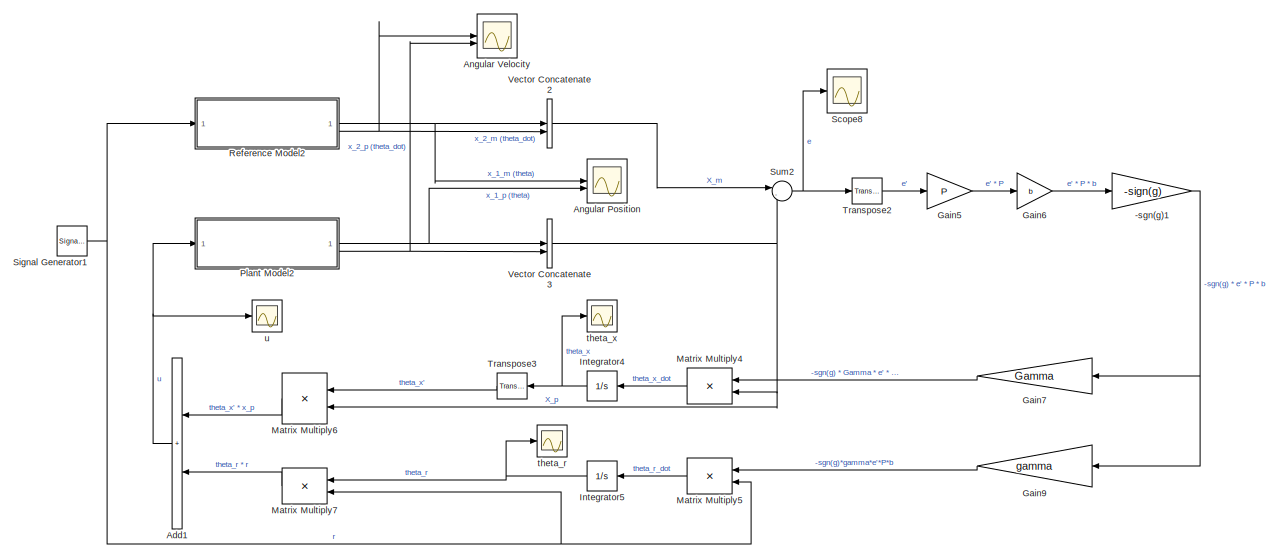
[diagram: root canvas - part 1/4, full width, top band]
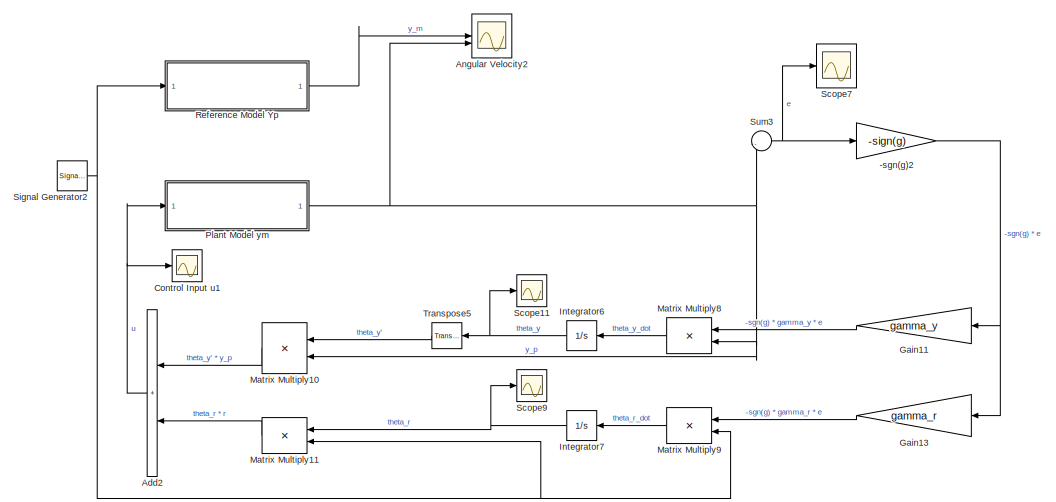
[diagram: root canvas - part 2/4, central region]
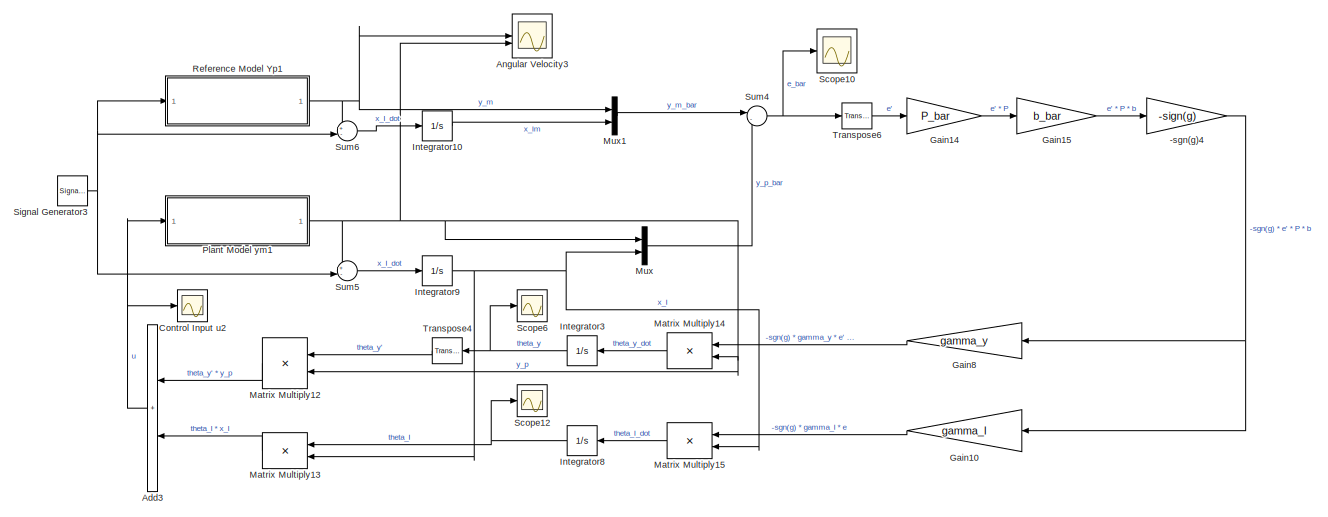
[diagram: root canvas - part 3/4, full width, middle band]
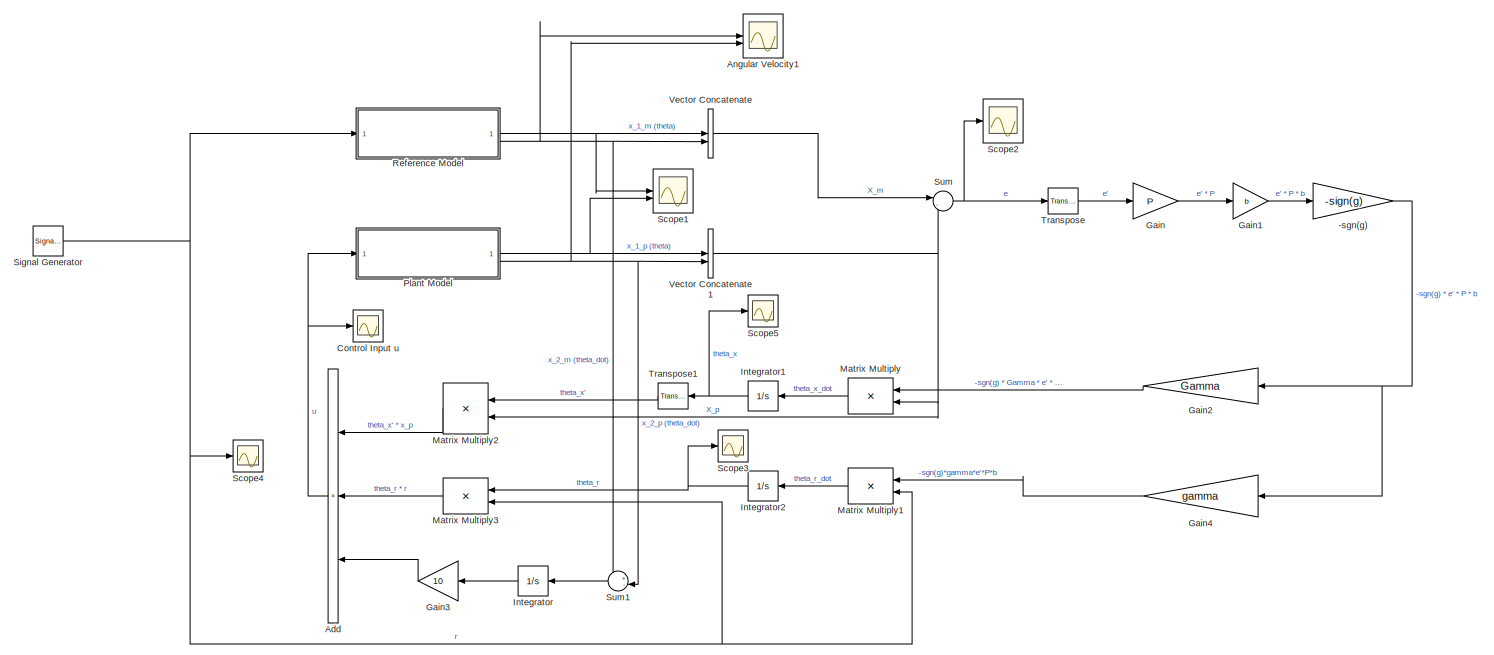
[diagram: root canvas - part 4/4, full width, bottom band]
MODEL slx_65a392cab419
KIND model
CONFIG AbsTol = auto
CONFIG EnableMultiTasking = off
CONFIG FixedStep = auto
CONFIG MaxStep = auto
CONFIG MinStep = auto
CONFIG RelTol = 1e-3
CONFIG SampleTimeConstraint = Unconstrained
CONFIG SolverName = VariableStepAuto
CONFIG StartTime = 0.0
CONFIG StopTime = 45
BLOCK [Gain] -sgn(g)
  Commented = on
  Gain = -sign(g)
BLOCK [Gain] -sgn(g)1
  Commented = on
  Gain = -sign(g)
BLOCK [Gain] -sgn(g)2
  Commented = on
  Gain = -sign(g)
BLOCK [Gain] -sgn(g)4
  Gain = -sign(g)
BLOCK [Sum] Add
  Commented = on
  IconShape = rectangular
  Inputs = +++
  NameLocation = top
BLOCK [Sum] Add1
  Commented = on
  IconShape = rectangular
  NameLocation = top
BLOCK [Sum] Add2
  Commented = on
  IconShape = rectangular
  NameLocation = top
BLOCK [Sum] Add3
  IconShape = rectangular
  NameLocation = top
BLOCK [Scope] Angular Position
  Floating = off
  NumInputPorts = 2
  ScopeSpecificationString = Simulink.scopes.TimeScopeBlockCfg('CurrentConfiguration', extmgr.ConfigurationSet(extmgr.Configuration('Core','General UI',true),extmgr.Configuration('Core','Source UI',true),extmgr.Configuration('Sources','WiredSimulink',true,'DataLoggingVariableName','ScopeData4','DataLoggingSaveFormat','Array','DataLoggingDecimation','1'),extmgr.Configuration('Visuals','Time Domain',true,'SerializedDisplays',{s...<+1920ch>
BLOCK [Scope] Angular Velocity
  Commented = on
  Floating = off
  NumInputPorts = 2
  ScopeSpecificationString = Simulink.scopes.TimeScopeBlockCfg('CurrentConfiguration', extmgr.ConfigurationSet(extmgr.Configuration('Core','General UI',true),extmgr.Configuration('Core','Source UI',true),extmgr.Configuration('Sources','WiredSimulink',true,'DataLoggingVariableName','ScopeData6','DataLoggingSaveFormat','Array','DataLoggingDecimation','1'),extmgr.Configuration('Visuals','Time Domain',true,'SerializedDisplays',{s...<+1735ch>
BLOCK [Scope] Angular Velocity1
  Commented = on
  Floating = off
  NumInputPorts = 2
  ScopeSpecificationString = Simulink.scopes.TimeScopeBlockCfg('CurrentConfiguration', extmgr.ConfigurationSet(extmgr.Configuration('Core','General UI',true),extmgr.Configuration('Core','Source UI',true),extmgr.Configuration('Sources','WiredSimulink',true,'DataLoggingVariableName','ScopeData3','DataLoggingSaveFormat','Array','DataLoggingDecimation','1'),extmgr.Configuration('Visuals','Time Domain',true,'SerializedDisplays',{s...<+1736ch>
BLOCK [Scope] Angular Velocity2
  Commented = on
  Floating = off
  NumInputPorts = 2
  ScopeSpecificationString = Simulink.scopes.TimeScopeBlockCfg('CurrentConfiguration', extmgr.ConfigurationSet(extmgr.Configuration('Core','General UI',true),extmgr.Configuration('Core','Source UI',true),extmgr.Configuration('Sources','WiredSimulink',true,'DataLoggingVariableName','ScopeData1','DataLoggingSaveFormat','Array','DataLoggingDecimation','1'),extmgr.Configuration('Visuals','Time Domain',true,'SerializedDisplays',{s...<+1706ch>
BLOCK [Scope] Angular Velocity3
  Floating = off
  NumInputPorts = 2
  ScopeSpecificationString = Simulink.scopes.TimeScopeBlockCfg('CurrentConfiguration', extmgr.ConfigurationSet(extmgr.Configuration('Core','General UI',true),extmgr.Configuration('Core','Source UI',true),extmgr.Configuration('Sources','WiredSimulink',true,'DataLoggingVariableName','ScopeData1','DataLoggingSaveFormat','Array','DataLoggingDecimation','1'),extmgr.Configuration('Visuals','Time Domain',true,'SerializedDisplays',{s...<+1732ch>
BLOCK [Scope] Control Input u
  Commented = on
  Floating = off
  NumInputPorts = 1
  ScopeSpecificationString = Simulink.scopes.TimeScopeBlockCfg('CurrentConfiguration', extmgr.ConfigurationSet(extmgr.Configuration('Core','General UI',true),extmgr.Configuration('Core','Source UI',true),extmgr.Configuration('Sources','WiredSimulink',true,'DataLoggingVariableName','ScopeData1'),extmgr.Configuration('Visuals','Time Domain',true,'SerializedDisplays',{struct('MinYLimReal','-31.2827','MaxYLimReal','29.62293','YLa...<+1386ch>
BLOCK [Scope] Control Input u1
  Commented = on
  Floating = off
  NumInputPorts = 1
  ScopeSpecificationString = Simulink.scopes.TimeScopeBlockCfg('CurrentConfiguration', extmgr.ConfigurationSet(extmgr.Configuration('Core','General UI',true),extmgr.Configuration('Core','Source UI',true),extmgr.Configuration('Sources','WiredSimulink',true,'DataLoggingVariableName','ScopeData2'),extmgr.Configuration('Visuals','Time Domain',true,'SerializedDisplays',{struct('MinYLimReal','-5.10662','MaxYLimReal','7.58229','YLab...<+1408ch>
BLOCK [Scope] Control Input u2
  Floating = off
  NumInputPorts = 1
  ScopeSpecificationString = Simulink.scopes.TimeScopeBlockCfg('CurrentConfiguration', extmgr.ConfigurationSet(extmgr.Configuration('Core','General UI',true),extmgr.Configuration('Core','Source UI',true),extmgr.Configuration('Sources','WiredSimulink',true,'DataLoggingVariableName','ScopeData2'),extmgr.Configuration('Visuals','Time Domain',true,'SerializedDisplays',{struct('MinYLimReal','-5.10662','MaxYLimReal','7.58229','YLab...<+1434ch>
BLOCK [Gain] Gain
  Commented = on
  Gain = P
  Multiplication = Matrix(u*K)
BLOCK [Gain] Gain1
  Commented = on
  Gain = b
  Multiplication = Matrix(u*K)
BLOCK [Gain] Gain10
  Gain = gamma_I
  NameLocation = top
BLOCK [Gain] Gain11
  Commented = on
  Gain = gamma_y
  NameLocation = top
BLOCK [Gain] Gain13
  Commented = on
  Gain = gamma_r
  NameLocation = top
BLOCK [Gain] Gain14
  Gain = P_bar
  Multiplication = Matrix(u*K)
BLOCK [Gain] Gain15
  Gain = b_bar
  Multiplication = Matrix(u*K)
BLOCK [Gain] Gain2
  Commented = on
  Gain = Gamma
  NameLocation = top
BLOCK [Gain] Gain3
  Commented = on
  Gain = 10
  NameLocation = top
BLOCK [Gain] Gain4
  Commented = on
  Gain = gamma
  NameLocation = top
BLOCK [Gain] Gain5
  Commented = on
  Gain = P
  Multiplication = Matrix(u*K)
BLOCK [Gain] Gain6
  Commented = on
  Gain = b
  Multiplication = Matrix(u*K)
BLOCK [Gain] Gain7
  Commented = on
  Gain = Gamma
  NameLocation = top
BLOCK [Gain] Gain8
  Gain = gamma_y
  NameLocation = top
BLOCK [Gain] Gain9
  Commented = on
  Gain = gamma
  NameLocation = top
BLOCK [Integrator] Integrator
  Commented = on
  NameLocation = top
BLOCK [Integrator] Integrator1
  Commented = on
  NameLocation = top
BLOCK [Integrator] Integrator10
BLOCK [Integrator] Integrator2
  Commented = on
  NameLocation = top
BLOCK [Integrator] Integrator3
  NameLocation = top
BLOCK [Integrator] Integrator4
  Commented = on
  NameLocation = top
BLOCK [Integrator] Integrator5
  Commented = on
  NameLocation = top
BLOCK [Integrator] Integrator6
  Commented = on
  NameLocation = top
BLOCK [Integrator] Integrator7
  Commented = on
  NameLocation = top
BLOCK [Integrator] Integrator8
  NameLocation = top
BLOCK [Integrator] Integrator9
BLOCK [Product] Matrix Multiply
  Commented = on
  Multiplication = Matrix(*)
  NameLocation = top
BLOCK [Product] Matrix Multiply1
  Commented = on
  Multiplication = Matrix(*)
  NameLocation = top
BLOCK [Product] Matrix Multiply10
  Commented = on
  Multiplication = Matrix(*)
  NameLocation = top
BLOCK [Product] Matrix Multiply11
  Commented = on
  Multiplication = Matrix(*)
  NameLocation = top
BLOCK [Product] Matrix Multiply12
  Multiplication = Matrix(*)
  NameLocation = top
BLOCK [Product] Matrix Multiply13
  Multiplication = Matrix(*)
  NameLocation = top
BLOCK [Product] Matrix Multiply14
  Multiplication = Matrix(*)
  NameLocation = top
BLOCK [Product] Matrix Multiply15
  Multiplication = Matrix(*)
  NameLocation = top
BLOCK [Product] Matrix Multiply2
  Commented = on
  Multiplication = Matrix(*)
  NameLocation = top
BLOCK [Product] Matrix Multiply3
  Commented = on
  Multiplication = Matrix(*)
  NameLocation = top
BLOCK [Product] Matrix Multiply4
  Commented = on
  Multiplication = Matrix(*)
  NameLocation = top
BLOCK [Product] Matrix Multiply5
  Commented = on
  Multiplication = Matrix(*)
  NameLocation = top
BLOCK [Product] Matrix Multiply6
  Commented = on
  Multiplication = Matrix(*)
  NameLocation = top
BLOCK [Product] Matrix Multiply7
  Commented = on
  Multiplication = Matrix(*)
  NameLocation = top
BLOCK [Product] Matrix Multiply8
  Commented = on
  Multiplication = Matrix(*)
  NameLocation = top
BLOCK [Product] Matrix Multiply9
  Commented = on
  Multiplication = Matrix(*)
  NameLocation = top
BLOCK [Mux] Mux
  DisplayOption = bar
  Inputs = 2
BLOCK [Mux] Mux1
  DisplayOption = bar
  Inputs = 2
BLOCK [ModelReference] Plant Model
  Commented = on
  ModelNameDialog = plant_model.slx
  ModelReferenceVersion = 1.20
BLOCK [ModelReference] Plant Model ym
  Commented = on
  ModelNameDialog = plant_model_ym.slx
  ModelReferenceVersion = 1.2
BLOCK [ModelReference] Plant Model ym1
  ModelNameDialog = plant_model_ym.slx
  ModelReferenceVersion = 1.2
BLOCK [ModelReference] Plant Model2
  Commented = on
  ModelNameDialog = plant_model.slx
  ModelReferenceVersion = 1.20
BLOCK [ModelReference] Reference Model
  Commented = on
  ModelNameDialog = reference_model.slx
  ModelReferenceVersion = 1.10
BLOCK [ModelReference] Reference Model Yp
  Commented = on
  ModelNameDialog = reference_model_yp.slx
  ModelReferenceVersion = 1.3
BLOCK [ModelReference] Reference Model Yp1
  ModelNameDialog = reference_model_yp.slx
  ModelReferenceVersion = 1.3
BLOCK [ModelReference] Reference Model2
  Commented = on
  ModelNameDialog = reference_model.slx
  ModelReferenceVersion = 1.10
BLOCK [Scope] Scope1
  Commented = on
  Floating = off
  NumInputPorts = 2
  ScopeSpecificationString = Simulink.scopes.TimeScopeBlockCfg('CurrentConfiguration', extmgr.ConfigurationSet(extmgr.Configuration('Core','General UI',true),extmgr.Configuration('Core','Source UI',true),extmgr.Configuration('Sources','WiredSimulink',true,'DataLoggingVariableName','ScopeData1','DataLoggingSaveFormat','Array','DataLoggingLimitDataPoints',true,'DataLoggingDecimation','1'),extmgr.Configuration('Visuals','Time Do...<+1754ch>
BLOCK [Scope] Scope10
  Floating = off
  NumInputPorts = 1
  ScopeSpecificationString = Simulink.scopes.TimeScopeBlockCfg('CurrentConfiguration', extmgr.ConfigurationSet(extmgr.Configuration('Core','General UI',true),extmgr.Configuration('Core','Source UI',true),extmgr.Configuration('Sources','WiredSimulink',true,'DataLoggingSaveFormat','Array','DataLoggingLimitDataPoints',true,'DataLoggingDecimation','1','DataLoggingVariableName','ScopeData3'),extmgr.Configuration('Visuals','Time Do...<+1631ch>
BLOCK [Scope] Scope11
  Commented = on
  Floating = off
  NumInputPorts = 1
  ScopeSpecificationString = Simulink.scopes.TimeScopeBlockCfg('CurrentConfiguration', extmgr.ConfigurationSet(extmgr.Configuration('Core','General UI',true),extmgr.Configuration('Core','Source UI',true),extmgr.Configuration('Sources','WiredSimulink',true,'DataLoggingVariableName','ScopeData4'),extmgr.Configuration('Visuals','Time Domain',true,'SerializedDisplays',{struct('MinYLimReal','-1.7155','MaxYLimReal','1.63688','YLabe...<+1389ch>
BLOCK [Scope] Scope12
  Floating = off
  NumInputPorts = 1
  ScopeSpecificationString = Simulink.scopes.TimeScopeBlockCfg('CurrentConfiguration', extmgr.ConfigurationSet(extmgr.Configuration('Core','General UI',true),extmgr.Configuration('Core','Source UI',true),extmgr.Configuration('Sources','WiredSimulink',true,'DataLoggingVariableName','ScopeData4'),extmgr.Configuration('Visuals','Time Domain',true,'SerializedDisplays',{struct('MinYLimReal','-0.29294','MaxYLimReal','2.63647','YLab...<+1419ch>
BLOCK [Scope] Scope2
  Commented = on
  Floating = off
  NumInputPorts = 1
  ScopeSpecificationString = Simulink.scopes.TimeScopeBlockCfg('CurrentConfiguration', extmgr.ConfigurationSet(extmgr.Configuration('Core','General UI',true),extmgr.Configuration('Core','Source UI',true),extmgr.Configuration('Sources','WiredSimulink',true,'DataLoggingSaveFormat','Array','DataLoggingLimitDataPoints',true,'DataLoggingDecimation','1'),extmgr.Configuration('Visuals','Time Domain',true,'SerializedDisplays',{struct...<+1603ch>
BLOCK [Scope] Scope3
  Commented = on
  Floating = off
  NumInputPorts = 1
  ScopeSpecificationString = Simulink.scopes.TimeScopeBlockCfg('CurrentConfiguration', extmgr.ConfigurationSet(extmgr.Configuration('Core','General UI',true),extmgr.Configuration('Core','Source UI',true),extmgr.Configuration('Sources','WiredSimulink',true,'DataLoggingVariableName','ScopeData2'),extmgr.Configuration('Visuals','Time Domain',true,'SerializedDisplays',{struct('MinYLimReal','-48.05863','MaxYLimReal','14.07149','YL...<+1415ch>
BLOCK [Scope] Scope4
  Commented = on
  Floating = off
  NumInputPorts = 1
  ScopeSpecificationString = Simulink.scopes.TimeScopeBlockCfg('CurrentConfiguration', extmgr.ConfigurationSet(extmgr.Configuration('Core','General UI',true),extmgr.Configuration('Core','Source UI',true),extmgr.Configuration('Sources','WiredSimulink',true,'DataLoggingVariableName','ScopeData3'),extmgr.Configuration('Visuals','Time Domain',true,'SerializedDisplays',{struct('MinYLimReal','-1.1','MaxYLimReal','-0.9','YLabelReal'...<+1366ch>
BLOCK [Scope] Scope5
  Commented = on
  Floating = off
  NumInputPorts = 1
  ScopeSpecificationString = Simulink.scopes.TimeScopeBlockCfg('CurrentConfiguration', extmgr.ConfigurationSet(extmgr.Configuration('Core','General UI',true),extmgr.Configuration('Core','Source UI',true),extmgr.Configuration('Sources','WiredSimulink',true,'DataLoggingVariableName','ScopeData3'),extmgr.Configuration('Visuals','Time Domain',true,'SerializedDisplays',{struct('MinYLimReal','-3.48628','MaxYLimReal','3.99642','YLab...<+1408ch>
BLOCK [Scope] Scope6
  Floating = off
  NumInputPorts = 1
  ScopeSpecificationString = Simulink.scopes.TimeScopeBlockCfg('CurrentConfiguration', extmgr.ConfigurationSet(extmgr.Configuration('Core','General UI',true),extmgr.Configuration('Core','Source UI',true),extmgr.Configuration('Sources','WiredSimulink',true,'DataLoggingVariableName','ScopeData5'),extmgr.Configuration('Visuals','Time Domain',true,'SerializedDisplays',{struct('MinYLimReal','-1.7155','MaxYLimReal','1.63688','YLabe...<+1415ch>
BLOCK [Scope] Scope7
  Commented = on
  Floating = off
  NumInputPorts = 1
  ScopeSpecificationString = Simulink.scopes.TimeScopeBlockCfg('CurrentConfiguration', extmgr.ConfigurationSet(extmgr.Configuration('Core','General UI',true),extmgr.Configuration('Core','Source UI',true),extmgr.Configuration('Sources','WiredSimulink',true,'DataLoggingSaveFormat','Array','DataLoggingLimitDataPoints',true,'DataLoggingDecimation','1','DataLoggingVariableName','ScopeData6'),extmgr.Configuration('Visuals','Time Do...<+1631ch>
BLOCK [Scope] Scope8
  Commented = on
  Floating = off
  NumInputPorts = 1
  ScopeSpecificationString = Simulink.scopes.TimeScopeBlockCfg('CurrentConfiguration', extmgr.ConfigurationSet(extmgr.Configuration('Core','General UI',true),extmgr.Configuration('Core','Source UI',true),extmgr.Configuration('Sources','WiredSimulink',true,'DataLoggingSaveFormat','Array','DataLoggingLimitDataPoints',true,'DataLoggingDecimation','1','DataLoggingVariableName','ScopeData5'),extmgr.Configuration('Visuals','Time Do...<+1640ch>
BLOCK [Scope] Scope9
  Commented = on
  Floating = off
  NumInputPorts = 1
  ScopeSpecificationString = Simulink.scopes.TimeScopeBlockCfg('CurrentConfiguration', extmgr.ConfigurationSet(extmgr.Configuration('Core','General UI',true),extmgr.Configuration('Core','Source UI',true),extmgr.Configuration('Sources','WiredSimulink',true,'DataLoggingVariableName','ScopeData7'),extmgr.Configuration('Visuals','Time Domain',true,'SerializedDisplays',{struct('MinYLimReal','-0.29294','MaxYLimReal','2.63647','YLab...<+1393ch>
BLOCK [SignalGenerator] Signal Generator
  Commented = on
  Units = rad/sec
  WaveForm = square
BLOCK [SignalGenerator] Signal Generator1
  Commented = on
  Units = rad/sec
  WaveForm = square
BLOCK [SignalGenerator] Signal Generator2
  Commented = on
  Units = rad/sec
  WaveForm = sawtooth
BLOCK [SignalGenerator] Signal Generator3
  Units = rad/sec
  WaveForm = sawtooth
BLOCK [Sum] Sum
  Commented = on
  Inputs = |-+
BLOCK [Sum] Sum1
  Commented = on
  Inputs = +-|
  NameLocation = top
BLOCK [Sum] Sum2
  Commented = on
  Inputs = |-+
BLOCK [Sum] Sum3
  Commented = on
  Inputs = |-+
BLOCK [Sum] Sum4
  Inputs = |-+
BLOCK [Sum] Sum5
  Inputs = +-|
BLOCK [Sum] Sum6
  Inputs = +-|
BLOCK [Reference] Transpose  REF=matrix_library/Transpose
  Commented = on
  LibrarySourceBlock = simulink/Matrix\nOperations/Transpose
  SourceBlock = matrix_library/Transpose
  SourceType = Transpose
BLOCK [Reference] Transpose1  REF=matrix_library/Transpose
  Commented = on
  LibrarySourceBlock = simulink/Matrix\nOperations/Transpose
  NameLocation = top
  SourceBlock = matrix_library/Transpose
  SourceType = Transpose
BLOCK [Reference] Transpose2  REF=matrix_library/Transpose
  Commented = on
  LibrarySourceBlock = simulink/Matrix\nOperations/Transpose
  SourceBlock = matrix_library/Transpose
  SourceType = Transpose
BLOCK [Reference] Transpose3  REF=matrix_library/Transpose
  Commented = on
  LibrarySourceBlock = simulink/Matrix\nOperations/Transpose
  NameLocation = top
  SourceBlock = matrix_library/Transpose
  SourceType = Transpose
BLOCK [Reference] Transpose4  REF=matrix_library/Transpose
  LibrarySourceBlock = simulink/Matrix\nOperations/Transpose
  NameLocation = top
  SourceBlock = matrix_library/Transpose
  SourceType = Transpose
BLOCK [Reference] Transpose5  REF=matrix_library/Transpose
  Commented = on
  LibrarySourceBlock = simulink/Matrix\nOperations/Transpose
  NameLocation = top
  SourceBlock = matrix_library/Transpose
  SourceType = Transpose
BLOCK [Reference] Transpose6  REF=matrix_library/Transpose
  LibrarySourceBlock = simulink/Matrix\nOperations/Transpose
  SourceBlock = matrix_library/Transpose
  SourceType = Transpose
BLOCK [Concatenate] Vector Concatenate
  Commented = on
BLOCK [Concatenate] Vector Concatenate1
  Commented = on
BLOCK [Concatenate] Vector Concatenate2
  Commented = on
BLOCK [Concatenate] Vector Concatenate3
  Commented = on
BLOCK [Scope] theta_r
  Commented = on
  Floating = off
  NumInputPorts = 1
  ScopeSpecificationString = Simulink.scopes.TimeScopeBlockCfg('CurrentConfiguration', extmgr.ConfigurationSet(extmgr.Configuration('Core','General UI',true),extmgr.Configuration('Core','Source UI',true),extmgr.Configuration('Sources','WiredSimulink',true,'DataLoggingVariableName','ScopeData1'),extmgr.Configuration('Visuals','Time Domain',true,'SerializedDisplays',{struct('MinYLimReal','-4.73497','MaxYLimReal','9.76329','YLab...<+1393ch>
BLOCK [Scope] theta_x
  Commented = on
  Floating = off
  NumInputPorts = 1
  ScopeSpecificationString = Simulink.scopes.TimeScopeBlockCfg('CurrentConfiguration', extmgr.ConfigurationSet(extmgr.Configuration('Core','General UI',true),extmgr.Configuration('Core','Source UI',true),extmgr.Configuration('Sources','WiredSimulink',true,'DataLoggingVariableName','ScopeData2'),extmgr.Configuration('Visuals','Time Domain',true,'SerializedDisplays',{struct('MinYLimReal','-36.68667','MaxYLimReal','7.20235','YLa...<+1410ch>
BLOCK [Scope] u
  Commented = on
  Floating = off
  NumInputPorts = 1
  ScopeSpecificationString = Simulink.scopes.TimeScopeBlockCfg('CurrentConfiguration', extmgr.ConfigurationSet(extmgr.Configuration('Core','General UI',true),extmgr.Configuration('Core','Source UI',true),extmgr.Configuration('Sources','WiredSimulink',true,'DataLoggingVariableName','ScopeData2'),extmgr.Configuration('Visuals','Time Domain',true,'SerializedDisplays',{struct('MinYLimReal','-18.18467','MaxYLimReal','16.08348','YL...<+1393ch>
NET -sgn(g)1:1 -> Gain7:1, Gain9:1
NET -sgn(g)2:1 -> Gain11:1, Gain13:1
NET -sgn(g)4:1 -> Gain10:1, Gain8:1
NET -sgn(g):1 -> Gain2:1, Gain4:1
NET Add1:1 -> Plant Model2:1, u:1
NET Add2:1 -> Control Input u1:1, Plant Model ym:1
NET Add3:1 -> Control Input u2:1, Plant Model ym1:1
NET Add:1 -> Control Input u:1, Plant Model:1
LINE Gain10:1 -> Matrix Multiply15:1
LINE Gain11:1 -> Matrix Multiply8:1
LINE Gain13:1 -> Matrix Multiply9:1
LINE Gain14:1 -> Gain15:1
LINE Gain15:1 -> -sgn(g)4:1
LINE Gain1:1 -> -sgn(g):1
LINE Gain2:1 -> Matrix Multiply:1
LINE Gain3:1 -> Add:3
LINE Gain4:1 -> Matrix Multiply1:1
LINE Gain5:1 -> Gain6:1
LINE Gain6:1 -> -sgn(g)1:1
LINE Gain7:1 -> Matrix Multiply4:1
LINE Gain8:1 -> Matrix Multiply14:1
LINE Gain9:1 -> Matrix Multiply5:1
LINE Gain:1 -> Gain1:1
LINE Integrator10:1 -> Mux1:2
NET Integrator1:1 -> Scope5:1, Transpose1:1
NET Integrator2:1 -> Matrix Multiply3:1, Scope3:1
NET Integrator3:1 -> Scope6:1, Transpose4:1
NET Integrator4:1 -> Transpose3:1, theta_x:1
NET Integrator5:1 -> Matrix Multiply7:1, theta_r:1
NET Integrator6:1 -> Scope11:1, Transpose5:1
NET Integrator7:1 -> Matrix Multiply11:1, Scope9:1
NET Integrator8:1 -> Matrix Multiply13:1, Scope12:1
NET Integrator9:1 -> Matrix Multiply13:2, Matrix Multiply15:2, Mux:2
LINE Integrator:1 -> Gain3:1
LINE Matrix Multiply10:1 -> Add2:1
LINE Matrix Multiply11:1 -> Add2:2
LINE Matrix Multiply12:1 -> Add3:1
LINE Matrix Multiply13:1 -> Add3:2
LINE Matrix Multiply14:1 -> Integrator3:1
LINE Matrix Multiply15:1 -> Integrator8:1
LINE Matrix Multiply1:1 -> Integrator2:1
LINE Matrix Multiply2:1 -> Add:1
LINE Matrix Multiply3:1 -> Add:2
LINE Matrix Multiply4:1 -> Integrator4:1
LINE Matrix Multiply5:1 -> Integrator5:1
LINE Matrix Multiply6:1 -> Add1:1
LINE Matrix Multiply7:1 -> Add1:2
LINE Matrix Multiply8:1 -> Integrator6:1
LINE Matrix Multiply9:1 -> Integrator7:1
LINE Matrix Multiply:1 -> Integrator1:1
LINE Mux1:1 -> Sum4:1
LINE Mux:1 -> Sum4:2
NET Plant Model ym1:1 -> Angular Velocity3:2, Matrix Multiply12:2, Matrix Multiply14:2, Mux:1, Sum5:1
NET Plant Model ym:1 -> Angular Velocity2:2, Matrix Multiply10:2, Matrix Multiply8:2, Sum3:2
NET Plant Model2:1 -> Angular Position:2, Vector Concatenate3:1
NET Plant Model2:2 -> Angular Velocity:2, Vector Concatenate3:2
NET Plant Model:1 -> Scope1:2, Vector Concatenate1:1
NET Plant Model:2 -> Angular Velocity1:2, Sum1:2, Vector Concatenate1:2
NET Reference Model Yp1:1 -> Angular Velocity3:1, Mux1:1, Sum6:1
LINE Reference Model Yp:1 -> Angular Velocity2:1
NET Reference Model2:1 -> Angular Position:1, Vector Concatenate2:1
NET Reference Model2:2 -> Angular Velocity:1, Vector Concatenate2:2
NET Reference Model:1 -> Scope1:1, Vector Concatenate:1
NET Reference Model:2 -> Angular Velocity1:1, Sum1:1, Vector Concatenate:2
NET Signal Generator1:1 -> Matrix Multiply5:2, Matrix Multiply7:2, Reference Model2:1
NET Signal Generator2:1 -> Matrix Multiply11:2, Matrix Multiply9:2, Reference Model Yp:1
NET Signal Generator3:1 -> Reference Model Yp1:1, Sum5:2, Sum6:2
NET Signal Generator:1 -> Matrix Multiply1:2, Matrix Multiply3:2, Reference Model:1, Scope4:1
LINE Sum1:1 -> Integrator:1
NET Sum2:1 -> Scope8:1, Transpose2:1
NET Sum3:1 -> -sgn(g)2:1, Scope7:1
NET Sum4:1 -> Scope10:1, Transpose6:1
LINE Sum5:1 -> Integrator9:1
LINE Sum6:1 -> Integrator10:1
NET Sum:1 -> Scope2:1, Transpose:1
LINE Transpose1:1 -> Matrix Multiply2:1
LINE Transpose2:1 -> Gain5:1
LINE Transpose3:1 -> Matrix Multiply6:1
LINE Transpose4:1 -> Matrix Multiply12:1
LINE Transpose5:1 -> Matrix Multiply10:1
LINE Transpose6:1 -> Gain14:1
LINE Transpose:1 -> Gain:1
NET Vector Concatenate1:1 -> Matrix Multiply2:2, Matrix Multiply:2, Sum:2
LINE Vector Concatenate2:1 -> Sum2:1
NET Vector Concatenate3:1 -> Matrix Multiply4:2, Matrix Multiply6:2, Sum2:2
LINE Vector Concatenate:1 -> Sum:1
note: NET lines group one-source signal fan-out (src -> all destinations, sorted); 1:1 wires keep LINE
